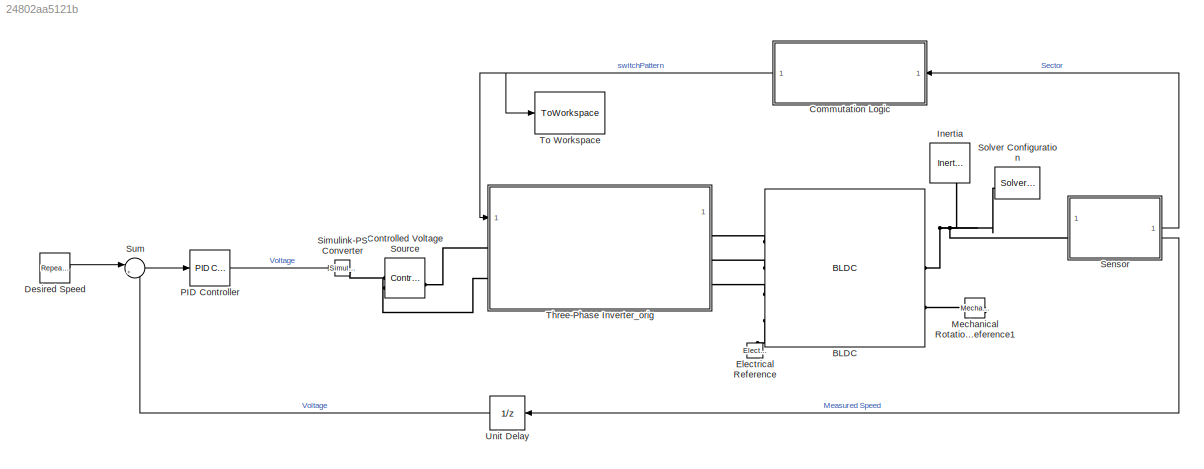
MODEL slx_24802aa5121b
KIND model
CONFIG AbsTol = auto
CONFIG EnableMultiTasking = off
CONFIG FixedStep = auto
CONFIG MaxStep = auto
CONFIG MinStep = auto
CONFIG RelTol = 1e-3
CONFIG SampleTimeConstraint = Unconstrained
CONFIG SolverName = VariableStepAuto
CONFIG StartTime = 0.0
CONFIG StopTime = 10.0
BLOCK [Reference] BLDC  REF=ee_lib/Electromechanical/Permanent Magnet/BLDC
  SourceBlock = ee_lib/Electromechanical/Permanent Magnet/BLDC
  SourceType = BLDC
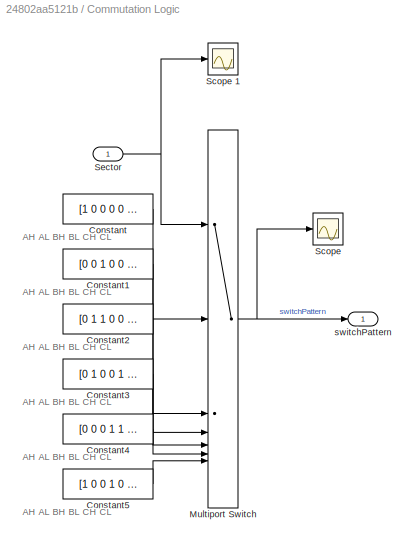
BLOCK [SubSystem] Commutation Logic
BLOCK [Constant] Commutation Logic/Constant
  Value = [1 0 0 0 0 1]
BLOCK [Constant] Commutation Logic/Constant1
  Value = [0 0 1 0 0 1]
BLOCK [Constant] Commutation Logic/Constant2
  Value = [0 1 1 0 0 0]
BLOCK [Constant] Commutation Logic/Constant3
  Value = [0 1 0 0 1 0]
BLOCK [Constant] Commutation Logic/Constant4
  Value = [0 0 0 1 1 0]
BLOCK [Constant] Commutation Logic/Constant5
  Value = [1 0 0 1 0 0]
BLOCK [MultiPortSwitch] Commutation Logic/Multiport Switch
  InputSameDT = off
  Inputs = 6
  SaturateOnIntegerOverflow = off
BLOCK [Scope] Commutation Logic/Scope
  Floating = off
  NumInputPorts = 1
  ScopeSpecificationString = Simulink.scopes.TimeScopeBlockCfg('CurrentConfiguration', extmgr.ConfigurationSet(extmgr.Configuration('Core','General UI',true),extmgr.Configuration('Core','Source UI',true),extmgr.Configuration('Sources','WiredSimulink',true,'DataLoggingVariableName','ScopeData3'),extmgr.Configuration('Visuals','Time Domain',true),extmgr.Configuration('Tools','Plot Navigation',true),extmgr.Configuration('Tools',...<+40ch>
BLOCK [Scope] Commutation Logic/Scope 1
  Floating = off
  NumInputPorts = 1
  ScopeSpecificationString = Simulink.scopes.TimeScopeBlockCfg('CurrentConfiguration', extmgr.ConfigurationSet(extmgr.Configuration('Core','General UI',true),extmgr.Configuration('Core','Source UI',true),extmgr.Configuration('Sources','WiredSimulink',true,'DataLoggingVariableName','ScopeData2'),extmgr.Configuration('Visuals','Time Domain',true,'SerializedDisplays',{struct('MinYLimReal','0.9','MaxYLimReal','1.1','YLabelReal','...<+1365ch>
BLOCK [Inport] Commutation Logic/Sector
BLOCK [Outport] Commutation Logic/switchPattern
BLOCK [Reference] Controlled Voltage Source  REF=fl_lib/Electrical/Electrical Sources/Controlled Voltage
Source
  SourceBlock = fl_lib/Electrical/Electrical Sources/Controlled Voltage\nSource
  SourceType = Controlled Voltage\nSource
BLOCK [Reference] Desired Speed  REF=simulink/Sources/Repeating
Sequence
  SourceBlock = simulink/Sources/Repeating\nSequence
  SourceType = Repeating table
BLOCK [Reference] Electrical Reference  REF=fl_lib/Electrical/Electrical Elements/Electrical Reference
  NameLocation = right
  SourceBlock = fl_lib/Electrical/Electrical Elements/Electrical Reference
  SourceType = Electrical Reference
BLOCK [Reference] Inertia  REF=fl_lib/Mechanical/Rotational Elements/Inertia
  NameLocation = left
  SourceBlock = fl_lib/Mechanical/Rotational Elements/Inertia
  SourceType = Inertia
BLOCK [Reference] Mechanical Rotational Reference1  REF=fl_lib/Mechanical/Rotational Elements/Mechanical
Rotational Reference
  NameLocation = top
  SourceBlock = fl_lib/Mechanical/Rotational Elements/Mechanical\nRotational Reference
  SourceType = Mechanical\nRotational Reference
BLOCK [Reference] PID Controller  REF=slpidlib/PID Controller
  SourceBlock = slpidlib/PID Controller
  SourceType = PID 1dof
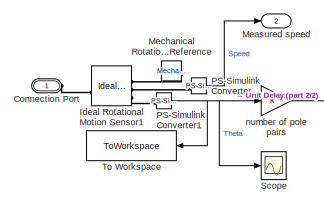
[diagram: Sensor - part 1/2, top left region]
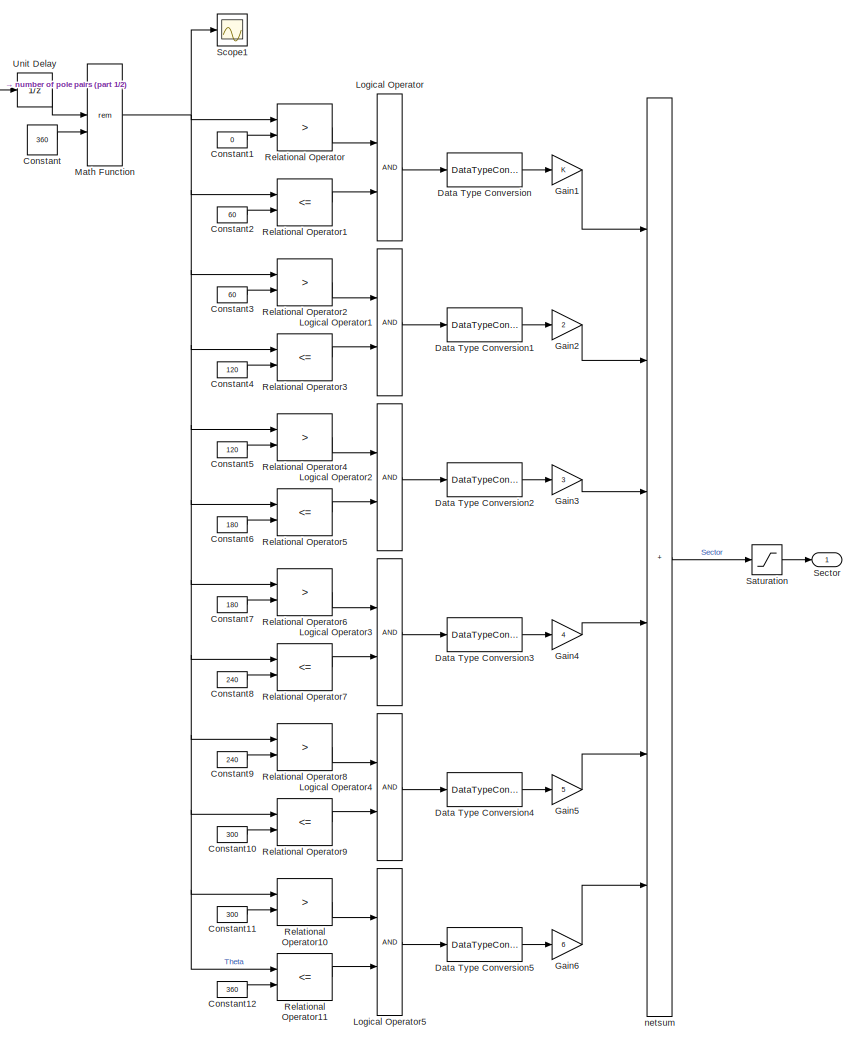
[diagram: Sensor - part 2/2, center side, full height]
BLOCK [SubSystem] Sensor
BLOCK [PMIOPort] Sensor/Connection Port
  Side = Left
BLOCK [Constant] Sensor/Constant
  SampleTime = 2e-5
  Value = 360
BLOCK [Constant] Sensor/Constant1
  Value = 0
BLOCK [Constant] Sensor/Constant10
  Value = 300
BLOCK [Constant] Sensor/Constant11
  Value = 300
BLOCK [Constant] Sensor/Constant12
  Value = 360
BLOCK [Constant] Sensor/Constant2
  Value = 60
BLOCK [Constant] Sensor/Constant3
  Value = 60
BLOCK [Constant] Sensor/Constant4
  Value = 120
BLOCK [Constant] Sensor/Constant5
  Value = 120
BLOCK [Constant] Sensor/Constant6
  Value = 180
BLOCK [Constant] Sensor/Constant7
  Value = 180
BLOCK [Constant] Sensor/Constant8
  Value = 240
BLOCK [Constant] Sensor/Constant9
  Value = 240
BLOCK [DataTypeConversion] Sensor/Data Type Conversion
  RndMeth = Floor
  SaturateOnIntegerOverflow = off
BLOCK [DataTypeConversion] Sensor/Data Type Conversion1
  RndMeth = Floor
  SaturateOnIntegerOverflow = off
BLOCK [DataTypeConversion] Sensor/Data Type Conversion2
  RndMeth = Floor
  SaturateOnIntegerOverflow = off
BLOCK [DataTypeConversion] Sensor/Data Type Conversion3
  RndMeth = Floor
  SaturateOnIntegerOverflow = off
BLOCK [DataTypeConversion] Sensor/Data Type Conversion4
  RndMeth = Floor
  SaturateOnIntegerOverflow = off
BLOCK [DataTypeConversion] Sensor/Data Type Conversion5
  RndMeth = Floor
  SaturateOnIntegerOverflow = off
BLOCK [Gain] Sensor/Gain1
BLOCK [Gain] Sensor/Gain2
  Gain = 2
BLOCK [Gain] Sensor/Gain3
  Gain = 3
BLOCK [Gain] Sensor/Gain4
  Gain = 4
BLOCK [Gain] Sensor/Gain5
  Gain = 5
BLOCK [Gain] Sensor/Gain6
  Gain = 6
BLOCK [Reference] Sensor/Ideal Rotational Motion Sensor1  REF=fl_lib/Mechanical/Mechanical Sensors/Ideal Rotational
Motion Sensor
  SourceBlock = fl_lib/Mechanical/Mechanical Sensors/Ideal Rotational\nMotion Sensor
  SourceType = Ideal Rotational\nMotion Sensor
BLOCK [Logic] Sensor/Logical Operator
  AllPortsSameDT = off
  OutDataTypeStr = boolean
BLOCK [Logic] Sensor/Logical Operator1
  AllPortsSameDT = off
  OutDataTypeStr = boolean
BLOCK [Logic] Sensor/Logical Operator2
  AllPortsSameDT = off
  OutDataTypeStr = boolean
BLOCK [Logic] Sensor/Logical Operator3
  AllPortsSameDT = off
  OutDataTypeStr = boolean
BLOCK [Logic] Sensor/Logical Operator4
  AllPortsSameDT = off
  OutDataTypeStr = boolean
BLOCK [Logic] Sensor/Logical Operator5
  AllPortsSameDT = off
  OutDataTypeStr = boolean
BLOCK [Math] Sensor/Math Function
  Operator = rem
BLOCK [Outport] Sensor/Measured speed
  Port = 2
BLOCK [Reference] Sensor/Mechanical Rotational Reference  REF=fl_lib/Mechanical/Rotational Elements/Mechanical
Rotational Reference
  NameLocation = top
  SourceBlock = fl_lib/Mechanical/Rotational Elements/Mechanical\nRotational Reference
  SourceType = Mechanical\nRotational Reference
BLOCK [Reference] Sensor/PS-Simulink Converter  REF=nesl_utility/PS-Simulink
Converter
  SourceBlock = nesl_utility/PS-Simulink\nConverter
  SourceType = PS-Simulink\nConverter
BLOCK [Reference] Sensor/PS-Simulink Converter1  REF=nesl_utility/PS-Simulink
Converter
  SourceBlock = nesl_utility/PS-Simulink\nConverter
  SourceType = PS-Simulink\nConverter
BLOCK [RelationalOperator] Sensor/Relational Operator
  InputSameDT = off
  Operator = >
  OutDataTypeStr = boolean
  RndMeth = Simplest
BLOCK [RelationalOperator] Sensor/Relational Operator1
  InputSameDT = off
  Operator = <=
  OutDataTypeStr = boolean
  RndMeth = Simplest
BLOCK [RelationalOperator] Sensor/Relational Operator10
  InputSameDT = off
  Operator = >
  OutDataTypeStr = boolean
  RndMeth = Simplest
BLOCK [RelationalOperator] Sensor/Relational Operator11
  InputSameDT = off
  Operator = <=
  OutDataTypeStr = boolean
  RndMeth = Simplest
BLOCK [RelationalOperator] Sensor/Relational Operator2
  InputSameDT = off
  Operator = >
  OutDataTypeStr = boolean
  RndMeth = Simplest
BLOCK [RelationalOperator] Sensor/Relational Operator3
  InputSameDT = off
  Operator = <=
  OutDataTypeStr = boolean
  RndMeth = Simplest
BLOCK [RelationalOperator] Sensor/Relational Operator4
  InputSameDT = off
  Operator = >
  OutDataTypeStr = boolean
  RndMeth = Simplest
BLOCK [RelationalOperator] Sensor/Relational Operator5
  InputSameDT = off
  Operator = <=
  OutDataTypeStr = boolean
  RndMeth = Simplest
BLOCK [RelationalOperator] Sensor/Relational Operator6
  InputSameDT = off
  Operator = >
  OutDataTypeStr = boolean
  RndMeth = Simplest
BLOCK [RelationalOperator] Sensor/Relational Operator7
  InputSameDT = off
  Operator = <=
  OutDataTypeStr = boolean
  RndMeth = Simplest
BLOCK [RelationalOperator] Sensor/Relational Operator8
  InputSameDT = off
  Operator = >
  OutDataTypeStr = boolean
  RndMeth = Simplest
BLOCK [RelationalOperator] Sensor/Relational Operator9
  InputSameDT = off
  Operator = <=
  OutDataTypeStr = boolean
  RndMeth = Simplest
BLOCK [Saturate] Sensor/Saturation
  LowerLimit = 1
  UpperLimit = 6
BLOCK [Scope] Sensor/Scope
  Floating = off
  NumInputPorts = 1
  ScopeSpecificationString = Simulink.scopes.TimeScopeBlockCfg('CurrentConfiguration', extmgr.ConfigurationSet(extmgr.Configuration('Core','General UI',true),extmgr.Configuration('Core','Source UI',true),extmgr.Configuration('Sources','WiredSimulink',true,'DataLoggingVariableName','ScopeData1','DataLogging',true,'DataLoggingSaveFormat','StructureWithTime'),extmgr.Configuration('Visuals','Time Domain',true,'SerializedDisplays'...<+1524ch>
BLOCK [Scope] Sensor/Scope1
  Floating = off
  NumInputPorts = 1
  ScopeSpecificationString = Simulink.scopes.TimeScopeBlockCfg('CurrentConfiguration', extmgr.ConfigurationSet(extmgr.Configuration('Core','General UI',true),extmgr.Configuration('Core','Source UI',true),extmgr.Configuration('Sources','WiredSimulink',true,'DataLoggingVariableName','ScopeData1'),extmgr.Configuration('Visuals','Time Domain',true,'SerializedDisplays',{struct('MinYLimReal','-6.87195','MaxYLimReal','61.84755','YLa...<+1402ch>
BLOCK [Outport] Sensor/Sector
BLOCK [ToWorkspace] Sensor/To Workspace
  FixptAsFi = on
  MaxDataPoints = inf
  SampleTime = -1
  Save2DSignal = 2-D array (concatenate along first dimension)
  SaveFormat = Structure
  VariableName = thetaSim
BLOCK [UnitDelay] Sensor/Unit Delay
  HasFrameUpgradeWarning = on
  SampleTime = 2e-5
BLOCK [Sum] Sensor/netsum
  IconShape = rectangular
  Inputs = ++++++
  OutDataTypeStr = Inherit: Same as first input
BLOCK [Gain] Sensor/number of pole pairs
BLOCK [Reference] Simulink-PS Converter  REF=nesl_utility/Simulink-PS
Converter
  SourceBlock = nesl_utility/Simulink-PS\nConverter
  SourceType = Simulink-PS\nConverter
BLOCK [Reference] Solver Configuration  REF=nesl_utility/Solver
Configuration
  NameLocation = top
  SourceBlock = nesl_utility/Solver\nConfiguration
  SourceType = Solver\nConfiguration
BLOCK [Sum] Sum
  Inputs = |+-
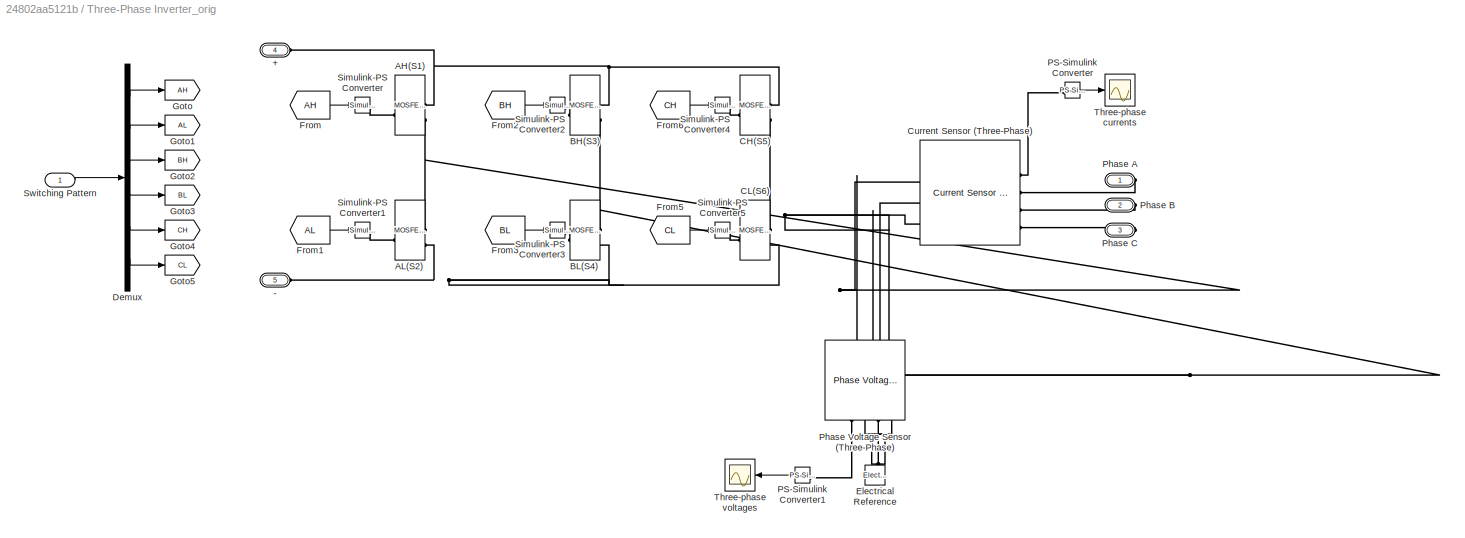
BLOCK [SubSystem] Three-Phase Inverter_orig
BLOCK [PMIOPort] Three-Phase Inverter_orig/+
  Port = 4
  Side = Left
BLOCK [PMIOPort] Three-Phase Inverter_orig/-
  Port = 5
  Side = Left
BLOCK [Reference] Three-Phase Inverter_orig/AH(S1)  REF=ee_lib/Semiconductors &
Converters/MOSFET
(Ideal,
Switching)
  SourceBlock = ee_lib/Semiconductors &\nConverters/MOSFET\n(Ideal,\nSwitching)
  SourceType = MOSFET\n(Ideal,\nSwitching)
BLOCK [Reference] Three-Phase Inverter_orig/AL(S2)  REF=ee_lib/Semiconductors &
Converters/MOSFET
(Ideal,
Switching)
  SourceBlock = ee_lib/Semiconductors &\nConverters/MOSFET\n(Ideal,\nSwitching)
  SourceType = MOSFET\n(Ideal,\nSwitching)
BLOCK [Reference] Three-Phase Inverter_orig/BH(S3)  REF=ee_lib/Semiconductors &
Converters/MOSFET
(Ideal,
Switching)
  SourceBlock = ee_lib/Semiconductors &\nConverters/MOSFET\n(Ideal,\nSwitching)
  SourceType = MOSFET\n(Ideal,\nSwitching)
BLOCK [Reference] Three-Phase Inverter_orig/BL(S4)  REF=ee_lib/Semiconductors &
Converters/MOSFET
(Ideal,
Switching)
  SourceBlock = ee_lib/Semiconductors &\nConverters/MOSFET\n(Ideal,\nSwitching)
  SourceType = MOSFET\n(Ideal,\nSwitching)
BLOCK [Reference] Three-Phase Inverter_orig/CH(S5)  REF=ee_lib/Semiconductors &
Converters/MOSFET
(Ideal,
Switching)
  SourceBlock = ee_lib/Semiconductors &\nConverters/MOSFET\n(Ideal,\nSwitching)
  SourceType = MOSFET\n(Ideal,\nSwitching)
BLOCK [Reference] Three-Phase Inverter_orig/CL(S6)  REF=ee_lib/Semiconductors &
Converters/MOSFET
(Ideal,
Switching)
  SourceBlock = ee_lib/Semiconductors &\nConverters/MOSFET\n(Ideal,\nSwitching)
  SourceType = MOSFET\n(Ideal,\nSwitching)
BLOCK [Reference] Three-Phase Inverter_orig/Current Sensor (Three-Phase)  REF=ee_lib/Sensors &
Transducers/Current Sensor
(Three-Phase)
  SourceBlock = ee_lib/Sensors &\nTransducers/Current Sensor\n(Three-Phase)
  SourceType = Current Sensor\n(Three-Phase)
BLOCK [Demux] Three-Phase Inverter_orig/Demux
  Outputs = 6
BLOCK [Reference] Three-Phase Inverter_orig/Electrical Reference  REF=fl_lib/Electrical/Electrical Elements/Electrical Reference
  NameLocation = right
  SourceBlock = fl_lib/Electrical/Electrical Elements/Electrical Reference
  SourceType = Electrical Reference
BLOCK [From] Three-Phase Inverter_orig/From
  GotoTag = AH
BLOCK [From] Three-Phase Inverter_orig/From1
  GotoTag = AL
BLOCK [From] Three-Phase Inverter_orig/From2
  GotoTag = BH
BLOCK [From] Three-Phase Inverter_orig/From3
  GotoTag = BL
BLOCK [From] Three-Phase Inverter_orig/From5
  GotoTag = CL
BLOCK [From] Three-Phase Inverter_orig/From6
  GotoTag = CH
BLOCK [Goto] Three-Phase Inverter_orig/Goto
  GotoTag = AH
BLOCK [Goto] Three-Phase Inverter_orig/Goto1
  GotoTag = AL
BLOCK [Goto] Three-Phase Inverter_orig/Goto2
  GotoTag = BH
BLOCK [Goto] Three-Phase Inverter_orig/Goto3
  GotoTag = BL
BLOCK [Goto] Three-Phase Inverter_orig/Goto4
  GotoTag = CH
BLOCK [Goto] Three-Phase Inverter_orig/Goto5
  GotoTag = CL
BLOCK [Reference] Three-Phase Inverter_orig/PS-Simulink Converter  REF=nesl_utility/PS-Simulink
Converter
  SourceBlock = nesl_utility/PS-Simulink\nConverter
  SourceType = PS-Simulink\nConverter
BLOCK [Reference] Three-Phase Inverter_orig/PS-Simulink Converter1  REF=nesl_utility/PS-Simulink
Converter
  SourceBlock = nesl_utility/PS-Simulink\nConverter
  SourceType = PS-Simulink\nConverter
BLOCK [PMIOPort] Three-Phase Inverter_orig/Phase A
  Side = Right
BLOCK [PMIOPort] Three-Phase Inverter_orig/Phase B
  Port = 2
  Side = Right
BLOCK [PMIOPort] Three-Phase Inverter_orig/Phase C
  Port = 3
  Side = Right
BLOCK [Reference] Three-Phase Inverter_orig/Phase Voltage Sensor (Three-Phase)  REF=ee_lib/Sensors &
Transducers/Phase Voltage Sensor
(Three-Phase)
  NameLocation = right
  SourceBlock = ee_lib/Sensors &\nTransducers/Phase Voltage Sensor\n(Three-Phase)
  SourceType = Phase Voltage Sensor\n(Three-Phase)
BLOCK [Reference] Three-Phase Inverter_orig/Simulink-PS Converter  REF=nesl_utility/Simulink-PS
Converter
  SourceBlock = nesl_utility/Simulink-PS\nConverter
  SourceType = Simulink-PS\nConverter
BLOCK [Reference] Three-Phase Inverter_orig/Simulink-PS Converter1  REF=nesl_utility/Simulink-PS
Converter
  SourceBlock = nesl_utility/Simulink-PS\nConverter
  SourceType = Simulink-PS\nConverter
BLOCK [Reference] Three-Phase Inverter_orig/Simulink-PS Converter2  REF=nesl_utility/Simulink-PS
Converter
  SourceBlock = nesl_utility/Simulink-PS\nConverter
  SourceType = Simulink-PS\nConverter
BLOCK [Reference] Three-Phase Inverter_orig/Simulink-PS Converter3  REF=nesl_utility/Simulink-PS
Converter
  SourceBlock = nesl_utility/Simulink-PS\nConverter
  SourceType = Simulink-PS\nConverter
BLOCK [Reference] Three-Phase Inverter_orig/Simulink-PS Converter4  REF=nesl_utility/Simulink-PS
Converter
  SourceBlock = nesl_utility/Simulink-PS\nConverter
  SourceType = Simulink-PS\nConverter
BLOCK [Reference] Three-Phase Inverter_orig/Simulink-PS Converter5  REF=nesl_utility/Simulink-PS
Converter
  SourceBlock = nesl_utility/Simulink-PS\nConverter
  SourceType = Simulink-PS\nConverter
BLOCK [Inport] Three-Phase Inverter_orig/Switching Pattern
BLOCK [Scope] Three-Phase Inverter_orig/Three-phase currents
  Floating = off
  NumInputPorts = 1
  ScopeSpecificationString = Simulink.scopes.TimeScopeBlockCfg('CurrentConfiguration', extmgr.ConfigurationSet(extmgr.Configuration('Core','General UI',true),extmgr.Configuration('Core','Source UI',true),extmgr.Configuration('Sources','WiredSimulink',true),extmgr.Configuration('Visuals','Time Domain',true,'SerializedDisplays',{struct('MinYLimReal','-2717.39095','MaxYLimReal','2717.39095','YLabelReal','','MinYLimMag','  0.0000...<+1450ch>
BLOCK [Scope] Three-Phase Inverter_orig/Three-phase voltages
  Floating = off
  NumInputPorts = 1
  ScopeSpecificationString = Simulink.scopes.TimeScopeBlockCfg('CurrentConfiguration', extmgr.ConfigurationSet(extmgr.Configuration('Core','General UI',true),extmgr.Configuration('Core','Source UI',true),extmgr.Configuration('Sources','WiredSimulink',true,'DataLoggingVariableName','ScopeData1'),extmgr.Configuration('Visuals','Time Domain',true,'SerializedDisplays',{struct('MinYLimReal','-1.00000','MaxYLimReal','1.00000','YLab...<+1437ch>
BLOCK [ToWorkspace] To Workspace
  MaxDataPoints = inf
  SampleTime = -1
  Save2DSignal = 2-D array (concatenate along first dimension)
  SaveFormat = Structure
  VariableName = switchPattern
BLOCK [UnitDelay] Unit Delay
  HasFrameUpgradeWarning = on
  SampleTime = -1
ANNOTATION Commutation Logic: AH AL BH BL CH CL
LINE Commutation Logic/Constant1:1 -> Commutation Logic/Multiport Switch:3
LINE Commutation Logic/Constant2:1 -> Commutation Logic/Multiport Switch:4
LINE Commutation Logic/Constant3:1 -> Commutation Logic/Multiport Switch:5
LINE Commutation Logic/Constant4:1 -> Commutation Logic/Multiport Switch:6
LINE Commutation Logic/Constant5:1 -> Commutation Logic/Multiport Switch:7
LINE Commutation Logic/Constant:1 -> Commutation Logic/Multiport Switch:2
NET Commutation Logic/Multiport Switch:1 -> Commutation Logic/Scope:1, Commutation Logic/switchPattern:1
NET Commutation Logic/Sector:1 -> Commutation Logic/Multiport Switch:1, Commutation Logic/Scope 1:1
NET Commutation Logic:1 -> Three-Phase Inverter_orig:1, To Workspace:1
LINE Desired Speed:1 -> Sum:1
LINE PID Controller:1 -> Simulink-PS Converter:1
LINE Sensor/Constant10:1 -> Sensor/Relational Operator9:2
LINE Sensor/Constant11:1 -> Sensor/Relational Operator10:2
LINE Sensor/Constant12:1 -> Sensor/Relational Operator11:2
LINE Sensor/Constant1:1 -> Sensor/Relational Operator:2
LINE Sensor/Constant2:1 -> Sensor/Relational Operator1:2
LINE Sensor/Constant3:1 -> Sensor/Relational Operator2:2
LINE Sensor/Constant4:1 -> Sensor/Relational Operator3:2
LINE Sensor/Constant5:1 -> Sensor/Relational Operator4:2
LINE Sensor/Constant6:1 -> Sensor/Relational Operator5:2
LINE Sensor/Constant7:1 -> Sensor/Relational Operator6:2
LINE Sensor/Constant8:1 -> Sensor/Relational Operator7:2
LINE Sensor/Constant9:1 -> Sensor/Relational Operator8:2
LINE Sensor/Constant:1 -> Sensor/Math Function:2
LINE Sensor/Data Type Conversion1:1 -> Sensor/Gain2:1
LINE Sensor/Data Type Conversion2:1 -> Sensor/Gain3:1
LINE Sensor/Data Type Conversion3:1 -> Sensor/Gain4:1
LINE Sensor/Data Type Conversion4:1 -> Sensor/Gain5:1
LINE Sensor/Data Type Conversion5:1 -> Sensor/Gain6:1
LINE Sensor/Data Type Conversion:1 -> Sensor/Gain1:1
LINE Sensor/Gain1:1 -> Sensor/netsum:1
LINE Sensor/Gain2:1 -> Sensor/netsum:2
LINE Sensor/Gain3:1 -> Sensor/netsum:3
LINE Sensor/Gain4:1 -> Sensor/netsum:4
LINE Sensor/Gain5:1 -> Sensor/netsum:5
LINE Sensor/Gain6:1 -> Sensor/netsum:6
LINE Sensor/Logical Operator1:1 -> Sensor/Data Type Conversion1:1
LINE Sensor/Logical Operator2:1 -> Sensor/Data Type Conversion2:1
LINE Sensor/Logical Operator3:1 -> Sensor/Data Type Conversion3:1
LINE Sensor/Logical Operator4:1 -> Sensor/Data Type Conversion4:1
LINE Sensor/Logical Operator5:1 -> Sensor/Data Type Conversion5:1
LINE Sensor/Logical Operator:1 -> Sensor/Data Type Conversion:1
NET Sensor/Math Function:1 -> Sensor/Relational Operator10:1, Sensor/Relational Operator11:1, Sensor/Relational Operator1:1, Sensor/Relational Operator2:1, Sensor/Relational Operator3:1, Sensor/Relational Operator4:1, Sensor/Relational Operator5:1, Sensor/Relational Operator6:1, Sensor/Relational Operator7:1, Sensor/Relational Operator8:1, Sensor/Relational Operator9:1, Sensor/Relational Operator:1, Sensor/Scope1:1
NET Sensor/PS-Simulink Converter1:1 -> Sensor/Scope:1, Sensor/To Workspace:1, Sensor/number of pole pairs:1
LINE Sensor/PS-Simulink Converter:1 -> Sensor/Measured speed:1
LINE Sensor/Relational Operator10:1 -> Sensor/Logical Operator5:1
LINE Sensor/Relational Operator11:1 -> Sensor/Logical Operator5:2
LINE Sensor/Relational Operator1:1 -> Sensor/Logical Operator:2
LINE Sensor/Relational Operator2:1 -> Sensor/Logical Operator1:1
LINE Sensor/Relational Operator3:1 -> Sensor/Logical Operator1:2
LINE Sensor/Relational Operator4:1 -> Sensor/Logical Operator2:1
LINE Sensor/Relational Operator5:1 -> Sensor/Logical Operator2:2
LINE Sensor/Relational Operator6:1 -> Sensor/Logical Operator3:1
LINE Sensor/Relational Operator7:1 -> Sensor/Logical Operator3:2
LINE Sensor/Relational Operator8:1 -> Sensor/Logical Operator4:1
LINE Sensor/Relational Operator9:1 -> Sensor/Logical Operator4:2
LINE Sensor/Relational Operator:1 -> Sensor/Logical Operator:1
LINE Sensor/Saturation:1 -> Sensor/Sector:1
LINE Sensor/Unit Delay:1 -> Sensor/Math Function:1
LINE Sensor/netsum:1 -> Sensor/Saturation:1
LINE Sensor/number of pole pairs:1 -> Sensor/Unit Delay:1
LINE Sensor:1 -> Commutation Logic:1
LINE Sensor:2 -> Unit Delay:1
LINE Sum:1 -> PID Controller:1
LINE Three-Phase Inverter_orig/Demux:1 -> Three-Phase Inverter_orig/Goto:1
LINE Three-Phase Inverter_orig/Demux:2 -> Three-Phase Inverter_orig/Goto1:1
LINE Three-Phase Inverter_orig/Demux:3 -> Three-Phase Inverter_orig/Goto2:1
LINE Three-Phase Inverter_orig/Demux:4 -> Three-Phase Inverter_orig/Goto3:1
LINE Three-Phase Inverter_orig/Demux:5 -> Three-Phase Inverter_orig/Goto4:1
LINE Three-Phase Inverter_orig/Demux:6 -> Three-Phase Inverter_orig/Goto5:1
LINE Three-Phase Inverter_orig/From1:1 -> Three-Phase Inverter_orig/Simulink-PS Converter1:1
LINE Three-Phase Inverter_orig/From2:1 -> Three-Phase Inverter_orig/Simulink-PS Converter2:1
LINE Three-Phase Inverter_orig/From3:1 -> Three-Phase Inverter_orig/Simulink-PS Converter3:1
LINE Three-Phase Inverter_orig/From5:1 -> Three-Phase Inverter_orig/Simulink-PS Converter5:1
LINE Three-Phase Inverter_orig/From6:1 -> Three-Phase Inverter_orig/Simulink-PS Converter4:1
LINE Three-Phase Inverter_orig/From:1 -> Three-Phase Inverter_orig/Simulink-PS Converter:1
LINE Three-Phase Inverter_orig/PS-Simulink Converter1:1 -> Three-Phase Inverter_orig/Three-phase voltages:1
LINE Three-Phase Inverter_orig/PS-Simulink Converter:1 -> Three-Phase Inverter_orig/Three-phase currents:1
LINE Three-Phase Inverter_orig/Switching Pattern:1 -> Three-Phase Inverter_orig/Demux:1
LINE Unit Delay:1 -> Sum:2
PLINE BLDC:LConn1 -- Three-Phase Inverter_orig:RConn1
PLINE BLDC:LConn2 -- Three-Phase Inverter_orig:RConn2
PLINE BLDC:LConn3 -- Three-Phase Inverter_orig:RConn3
PLINE BLDC:LConn4 -- Electrical Reference:LConn1
PNET net1: BLDC:RConn1 -- Inertia:LConn1 -- Sensor:LConn1 -- Solver Configuration:RConn1
PLINE BLDC:RConn2 -- Mechanical Rotational Reference1:LConn1
PLINE Controlled Voltage Source:LConn1 -- Three-Phase Inverter_orig:LConn1
PLINE Controlled Voltage Source:RConn1 -- Simulink-PS Converter:RConn1
PLINE Controlled Voltage Source:RConn2 -- Three-Phase Inverter_orig:LConn2
PLINE Sensor/Connection Port:RConn1 -- Sensor/Ideal Rotational Motion Sensor1:LConn1
PLINE Sensor/Ideal Rotational Motion Sensor1:RConn1 -- Sensor/Mechanical Rotational Reference:LConn1
PLINE Sensor/Ideal Rotational Motion Sensor1:RConn2 -- Sensor/PS-Simulink Converter:LConn1
PLINE Sensor/Ideal Rotational Motion Sensor1:RConn3 -- Sensor/PS-Simulink Converter1:LConn1
PNET net2: Three-Phase Inverter_orig/+:RConn1 -- Three-Phase Inverter_orig/AH(S1):RConn1 -- Three-Phase Inverter_orig/BH(S3):RConn1 -- Three-Phase Inverter_orig/CH(S5):RConn1
PNET net3: Three-Phase Inverter_orig/-:RConn1 -- Three-Phase Inverter_orig/AL(S2):RConn2 -- Three-Phase Inverter_orig/BL(S4):RConn2 -- Three-Phase Inverter_orig/CL(S6):RConn2
PLINE Three-Phase Inverter_orig/AH(S1):LConn1 -- Three-Phase Inverter_orig/Simulink-PS Converter:RConn1
PNET net4: Three-Phase Inverter_orig/AH(S1):RConn2 -- Three-Phase Inverter_orig/AL(S2):RConn1 -- Three-Phase Inverter_orig/Current Sensor (Three-Phase):LConn1 -- Three-Phase Inverter_orig/Phase Voltage Sensor (Three-Phase):LConn1
PLINE Three-Phase Inverter_orig/AL(S2):LConn1 -- Three-Phase Inverter_orig/Simulink-PS Converter1:RConn1
PLINE Three-Phase Inverter_orig/BH(S3):LConn1 -- Three-Phase Inverter_orig/Simulink-PS Converter2:RConn1
PNET net5: Three-Phase Inverter_orig/BH(S3):RConn2 -- Three-Phase Inverter_orig/BL(S4):RConn1 -- Three-Phase Inverter_orig/Current Sensor (Three-Phase):LConn2 -- Three-Phase Inverter_orig/Phase Voltage Sensor (Three-Phase):LConn2
PLINE Three-Phase Inverter_orig/BL(S4):LConn1 -- Three-Phase Inverter_orig/Simulink-PS Converter3:RConn1
PLINE Three-Phase Inverter_orig/CH(S5):LConn1 -- Three-Phase Inverter_orig/Simulink-PS Converter4:RConn1
PNET net6: Three-Phase Inverter_orig/CH(S5):RConn2 -- Three-Phase Inverter_orig/CL(S6):RConn1 -- Three-Phase Inverter_orig/Current Sensor (Three-Phase):LConn3 -- Three-Phase Inverter_orig/Phase Voltage Sensor (Three-Phase):LConn3
PLINE Three-Phase Inverter_orig/CL(S6):LConn1 -- Three-Phase Inverter_orig/Simulink-PS Converter5:RConn1
PLINE Three-Phase Inverter_orig/Current Sensor (Three-Phase):RConn1 -- Three-Phase Inverter_orig/PS-Simulink Converter:LConn1
PLINE Three-Phase Inverter_orig/Current Sensor (Three-Phase):RConn2 -- Three-Phase Inverter_orig/Phase A:RConn1
PLINE Three-Phase Inverter_orig/Current Sensor (Three-Phase):RConn3 -- Three-Phase Inverter_orig/Phase B:RConn1
PLINE Three-Phase Inverter_orig/Current Sensor (Three-Phase):RConn4 -- Three-Phase Inverter_orig/Phase C:RConn1
PNET net7: Three-Phase Inverter_orig/Electrical Reference:LConn1 -- Three-Phase Inverter_orig/Phase Voltage Sensor (Three-Phase):RConn2 -- Three-Phase Inverter_orig/Phase Voltage Sensor (Three-Phase):RConn3 -- Three-Phase Inverter_orig/Phase Voltage Sensor (Three-Phase):RConn4
PLINE Three-Phase Inverter_orig/PS-Simulink Converter1:LConn1 -- Three-Phase Inverter_orig/Phase Voltage Sensor (Three-Phase):RConn1
note: NET lines group one-source signal fan-out (src -> all destinations, sorted); 1:1 wires keep LINE; PNET lines group multi-terminal physical nets as a canonical sorted terminal list (undirected conserving connections); 2-terminal nets keep the pairwise PLINE form
